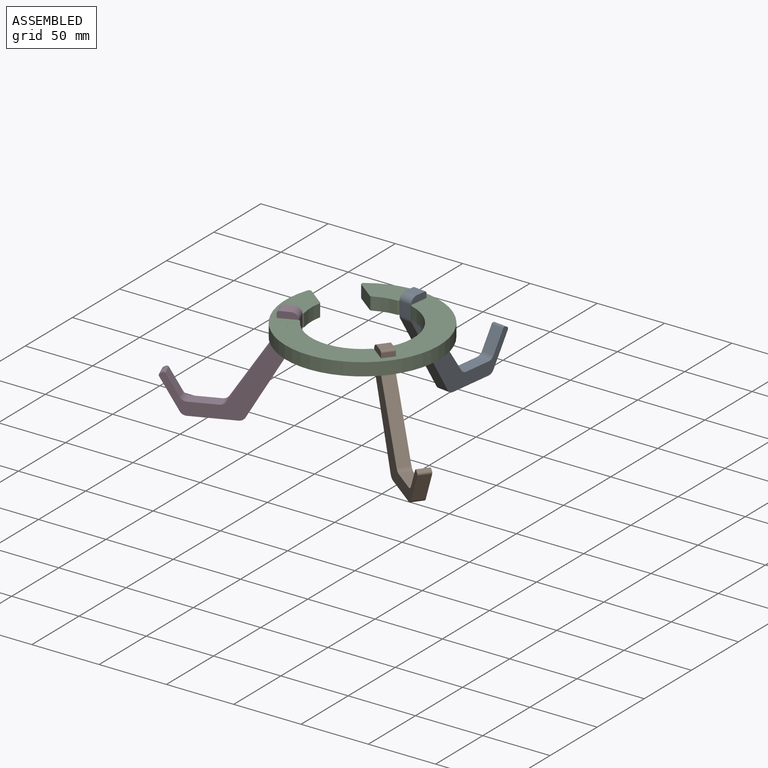
[diagram: assembled view]
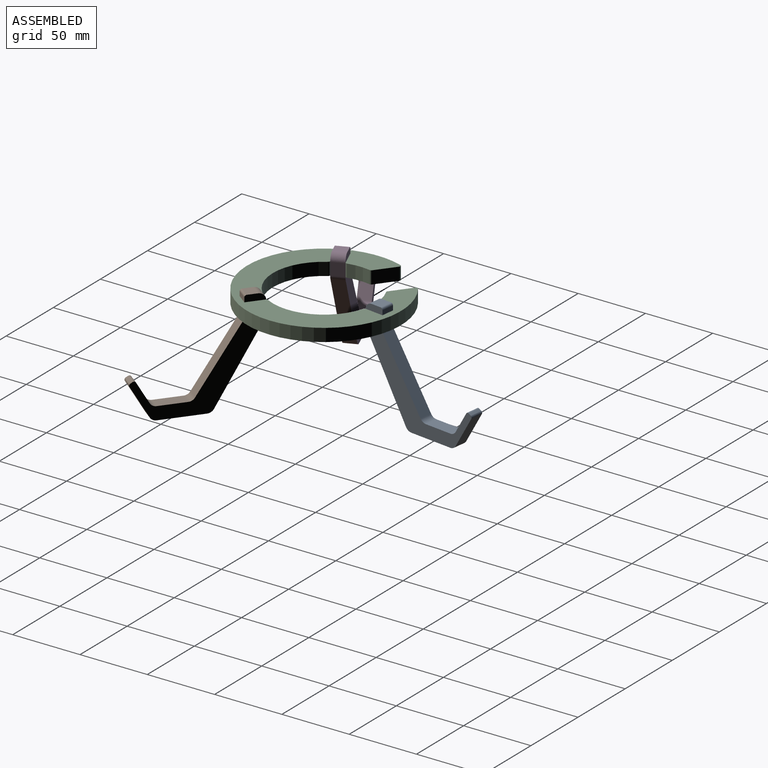
[diagram: assembled view, second angle]
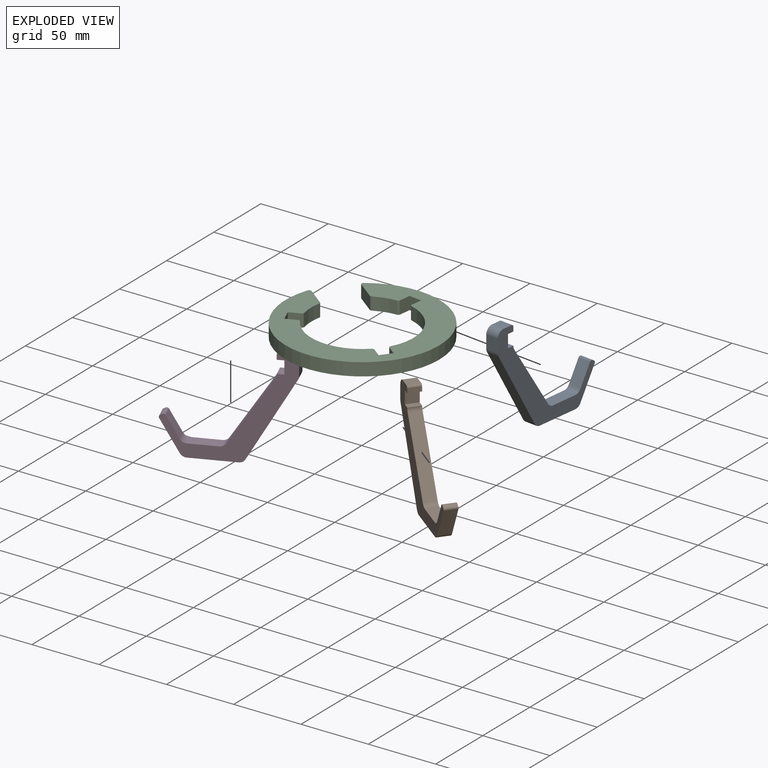
[diagram: exploded view]
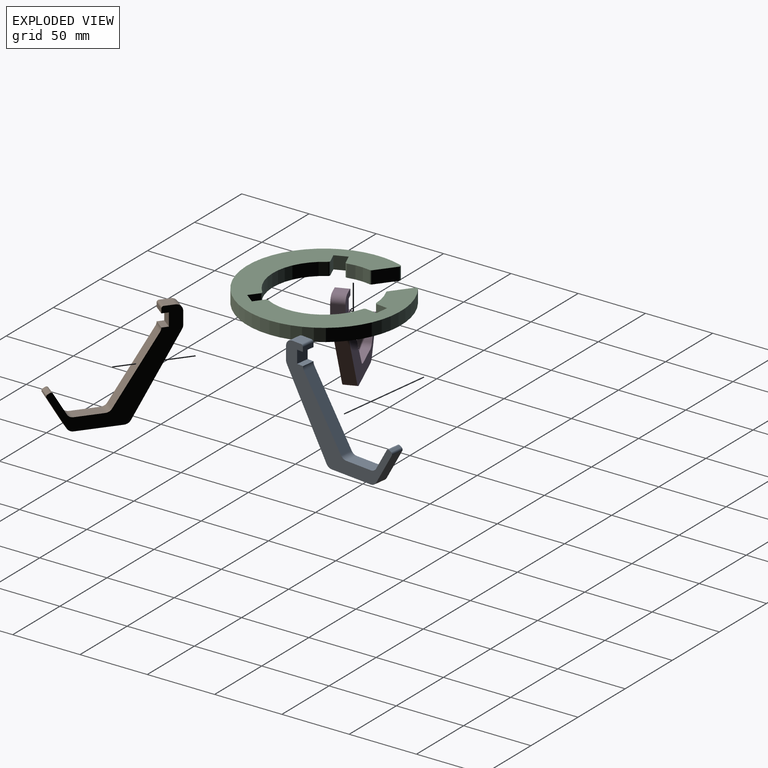
[diagram: exploded view, second angle]
ASSEMBLY  parts=4 mates=9
PART A: 26 faces, bbox 87.5x9.5x76.2 mm
  f0: plane 9.53x3.3mm, normal (1,0,0), area 31.5mm2, adj f13,f14,f15,f23
  f1: plane 9.53x7.37mm, normal (0,0,1), area 70.2mm2, adj f14,f15,f16,f23
  f2: plane 9.53x9.43mm, normal (-1,0,0), area 89.9mm2, adj f14,f15,f16,f17
  f3: plane 56.61x32.68mm, normal (-0.87,0,-0.5), area 622.6mm2, adj f14,f15,f17,f18
  f4: plane 32.23x9.53mm, normal (0,0,-1), area 307mm2, adj f14,f15,f18,f19
  f5: plane 22.33x12.89mm, normal (0.87,0,-0.5), area 245.6mm2, adj f14,f15,f19,f24
  f6: plane 9.53x1.49mm, normal (0.5,0,0.87), area 16.3mm2, adj f14,f15,f24,f25
  f7: plane 15.19x9.53mm, normal (-0.87,0,0.5), area 167.1mm2, adj f14,f15,f20,f25
  f8: plane 20.28x9.53mm, normal (0,0,1), area 193.1mm2, adj f14,f15,f20,f21
  f9: plane 47.22x30.67mm, normal (0.84,0,0.54), area 536.3mm2, adj f14,f15,f21,f22
  f10: plane 9.53x0.02mm, normal (1,0,0), area 0.2mm2, adj f11,f14,f15,f22
  f11: plane 9.53x4.83mm, normal (0,0,1), area 46mm2, adj f10,f12,f14,f15
  f12: plane 9.53x9.53mm, normal (1,0,0), area 90.7mm2, adj f11,f13,f14,f15
  f13: plane 9.53x4.83mm, normal (0,0,-1), area 46mm2, adj f0,f12,f14,f15
  f14: plane 87.49x76.2mm, normal (0,-1,0), area 1484.8mm2, adj f0,f1,f2,f3,f4,f5,f6,f7
  f15: plane 87.49x76.2mm, normal (0,1,0), area 1484.8mm2, adj f0,f1,f2,f3,f4,f5,f6,f7
  f16: cylinder r=5.08mm len=9.53mm, axis (0,1,0), area 76mm2, adj f1,f2,f14,f15
  f17: cylinder r=5.08mm len=9.53mm, axis (0,1,0), area 25.3mm2, adj f2,f3,f14,f15
  f18: cylinder r=5.08mm len=9.53mm, axis (0,1,0), area 50.7mm2, adj f3,f4,f14,f15
  f19: cylinder r=5.08mm len=9.53mm, axis (0,1,0), area 50.7mm2, adj f4,f5,f14,f15
  f20: cylinder r=5.08mm len=9.53mm, axis (0,-1,0), area 50.7mm2, adj f7,f8,f14,f15
  f21: cylinder r=5.08mm len=9.53mm, axis (0,-1,0), area 48.1mm2, adj f8,f9,f14,f15
  f22: cylinder r=5.08mm len=9.53mm, axis (0,-1,0), area 27.9mm2, adj f9,f10,f14,f15
  f23: cylinder r=1.52mm len=9.53mm, axis (0,1,0), area 22.8mm2, adj f0,f1,f14,f15
  f24: cylinder r=1.52mm len=9.53mm, axis (0,1,0), area 22.8mm2, adj f5,f6,f14,f15
  f25: cylinder r=1.52mm len=9.53mm, axis (0,1,0), area 22.8mm2, adj f6,f7,f14,f15
PART B: same geometry as A
PART C: 28 faces, bbox 111.5x114.3x9.5 mm
  f0: cylinder r=38.1mm len=12.83mm, axis (0,0,-1), area 157.2mm2, adj f1,f2,f18,f24
  f1: plane 114.3x111.51mm, normal (0,0,1), area 4803.8mm2, adj f0,f3,f4,f5,f6,f7,f8,f9
  f2: plane 114.3x111.51mm, normal (0,0,-1), area 4803.8mm2, adj f0,f3,f4,f5,f6,f7,f8,f9
  f3: cylinder r=57.15mm len=114.3mm, axis (0,0,-1), area 3073.9mm2, adj f1,f2,f20,f21
  f4: cylinder r=38.1mm len=51.19mm, axis (0,0,-1), area 644.4mm2, adj f1,f2,f22,f25
  f5: cylinder r=38.1mm len=12.83mm, axis (0,0,-1), area 157.2mm2, adj f1,f2,f19,f27
  f6: cylinder r=38.1mm len=51.19mm, axis (0,0,-1), area 644.4mm2, adj f1,f2,f23,f26
  f7: plane 9.53x8.25mm, normal (0.5,0.87,0), area 90.7mm2, adj f1,f2,f8,f9
  f8: plane 9.53x7.36mm, normal (-0.87,0.5,0), area 81mm2, adj f1,f2,f7,f26
  f9: plane 9.53x7.36mm, normal (0.87,-0.5,0), area 81mm2, adj f1,f2,f7,f27
  f10: plane 9.53x8.25mm, normal (0.5,-0.87,0), area 90.7mm2, adj f1,f2,f11,f12
  f11: plane 9.53x7.36mm, normal (0.87,0.5,0), area 81mm2, adj f1,f2,f10,f24
  f12: plane 9.53x7.36mm, normal (-0.87,-0.5,0), area 81mm2, adj f1,f2,f10,f25
  f13: plane 9.53x9.53mm, normal (-1,0,0), area 90.7mm2, adj f1,f2,f14,f15
  f14: plane 9.53x8.5mm, normal (0,-1,0), area 81mm2, adj f1,f2,f13,f22
  f15: plane 9.53x8.5mm, normal (0,1,0), area 81mm2, adj f1,f2,f13,f23
  f16: plane 17.24x9.53mm, normal (0,1,0), area 164.2mm2, adj f1,f2,f19,f21
  f17: plane 17.24x9.53mm, normal (0,-1,0), area 164.2mm2, adj f1,f2,f18,f20
  f18: cylinder r=1.52mm len=9.53mm, axis (0,0,-1), area 16.2mm2, adj f0,f1,f2,f17
  f19: cylinder r=1.52mm len=9.53mm, axis (0,0,-1), area 16.2mm2, adj f1,f2,f5,f16
  f20: cylinder r=1.52mm len=9.53mm, axis (0,0,-1), area 27.4mm2, adj f1,f2,f3,f17
  f21: cylinder r=1.52mm len=9.53mm, axis (0,0,-1), area 27.4mm2, adj f1,f2,f3,f16
  f22: cylinder r=1.52mm len=9.53mm, axis (0,0,-1), area 20.5mm2, adj f1,f2,f4,f14
  f23: cylinder r=1.52mm len=9.53mm, axis (0,0,-1), area 20.5mm2, adj f1,f2,f6,f15
  f24: cylinder r=1.52mm len=9.53mm, axis (0,0,-1), area 20.5mm2, adj f0,f1,f2,f11
  f25: cylinder r=1.52mm len=9.53mm, axis (0,0,-1), area 20.5mm2, adj f1,f2,f4,f12
  f26: cylinder r=1.52mm len=9.53mm, axis (0,0,-1), area 20.5mm2, adj f1,f2,f6,f8
  f27: cylinder r=1.52mm len=9.53mm, axis (0,0,-1), area 20.5mm2, adj f1,f2,f5,f9
PART D: same geometry as A
PLACE A rot(axis=(0,0,1),82.5deg) t=(-141.66,45.09,-81.1)mm
PLACE B rot(axis=(0,0,-1),37.5deg) t=(-86.92,-65.39,-81.1)mm
PLACE C rot(axis=(0,0,-1),37.5deg) t=(-146.19,-25.95,-71.37)mm
PLACE D rot(axis=(0,0,-1),157.5deg) t=(-209.97,-57.56,-81.1)mm
MATE planar C.f13 <-> B.f12  axis (-0.79,0.61,0) through (-108.39,-54.93,-66.61)mm
MATE planar C.f11 <-> A.f15  axis (0.99,-0.13,0) through (-145.26,17.67,-66.61)mm
MATE planar C.f1 <-> D.f13  axis (0,0,1) through (-141.41,-29.61,-61.84)mm
MATE planar C.f8 <-> D.f15  axis (-0.38,0.92,0) through (-184.43,-46.96,-66.61)mm
MATE planar C.f7 <-> D.f12  axis (0.92,0.38,0) through (-190.18,-44.19,-66.61)mm
MATE planar C.f10 <-> A.f12  axis (-0.13,-0.99,0) through (-139.99,21.27,-66.61)mm
MATE planar C.f1 <-> A.f13  axis (0,0,1) through (-141.41,-29.61,-61.84)mm
MATE planar C.f14 <-> B.f15  axis (-0.61,-0.79,0) through (-108.87,-48.56,-66.61)mm
MATE planar B.f13 <-> C.f1  axis (0,0,-1) through (-106.48,-56.4,-61.84)mm
